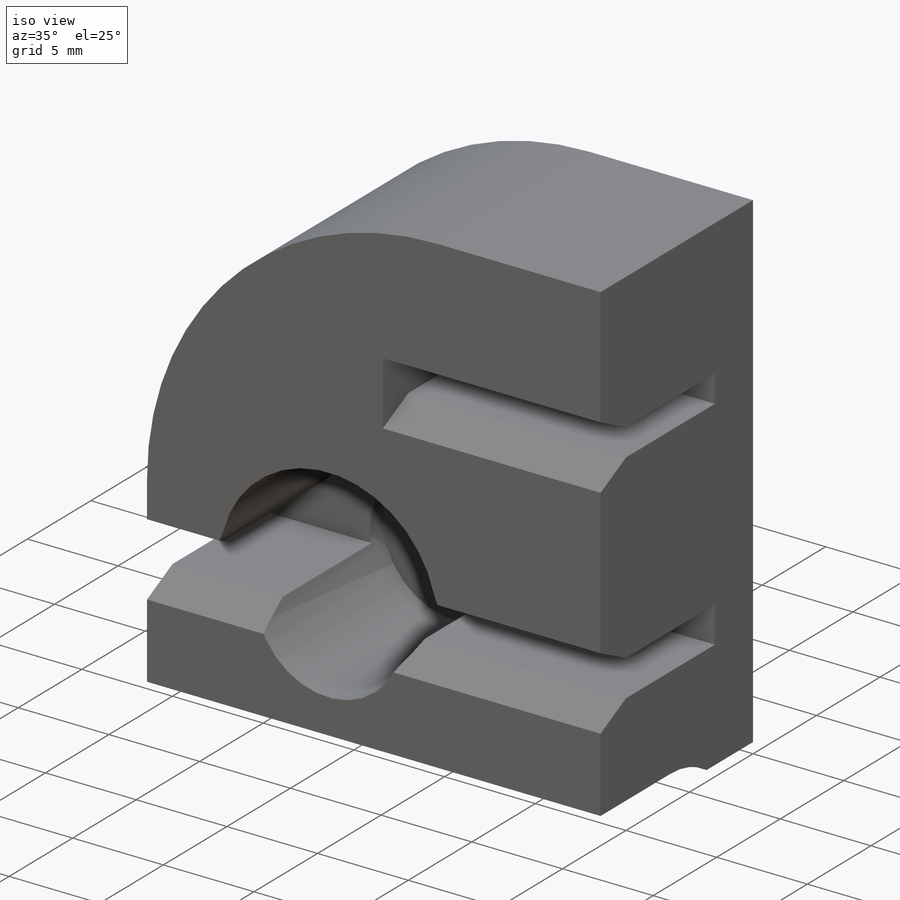
[diagram: iso view]
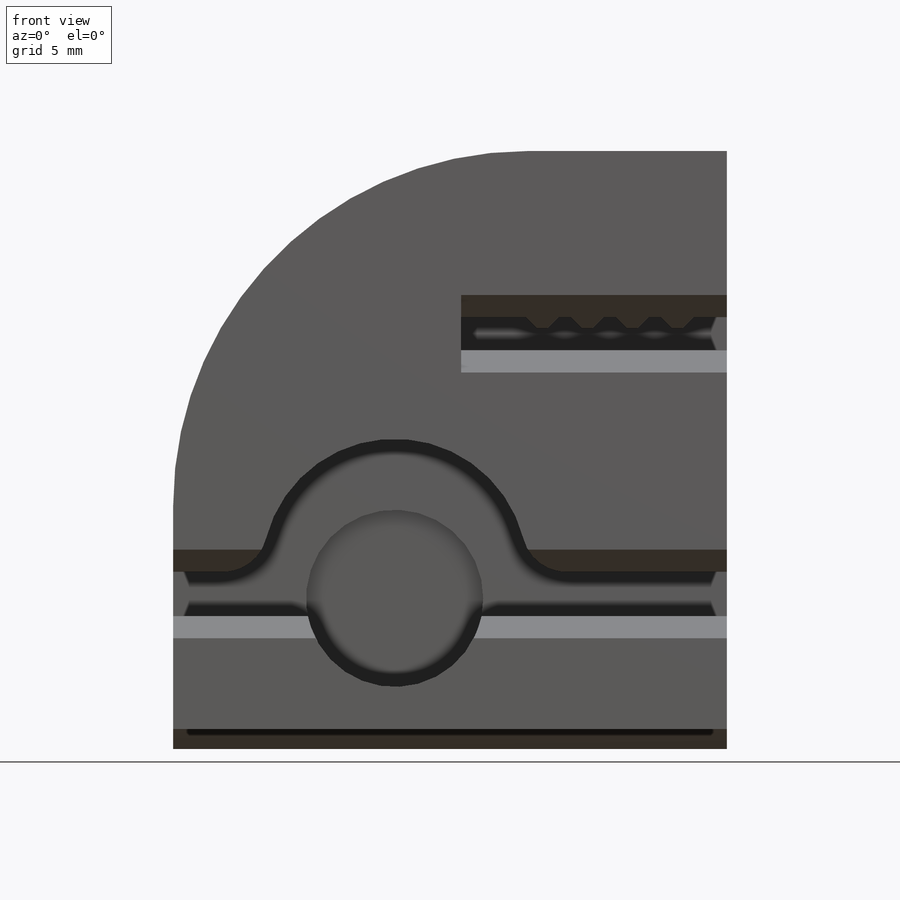
[diagram: front view]
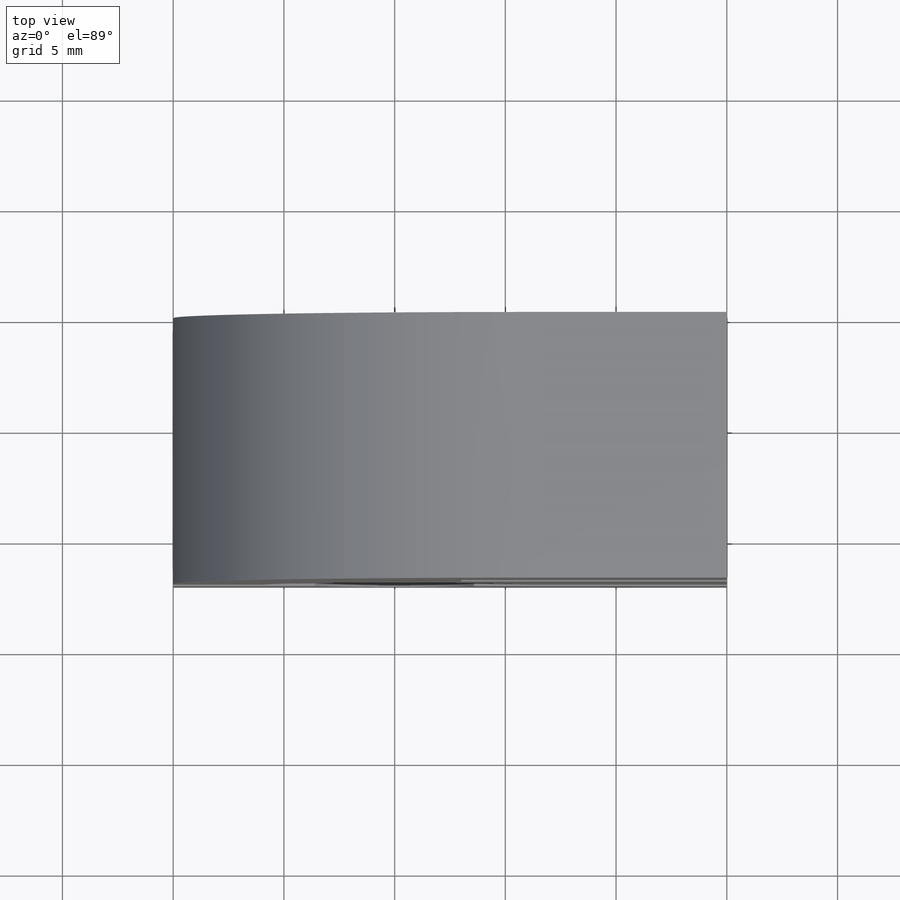
[diagram: top view]
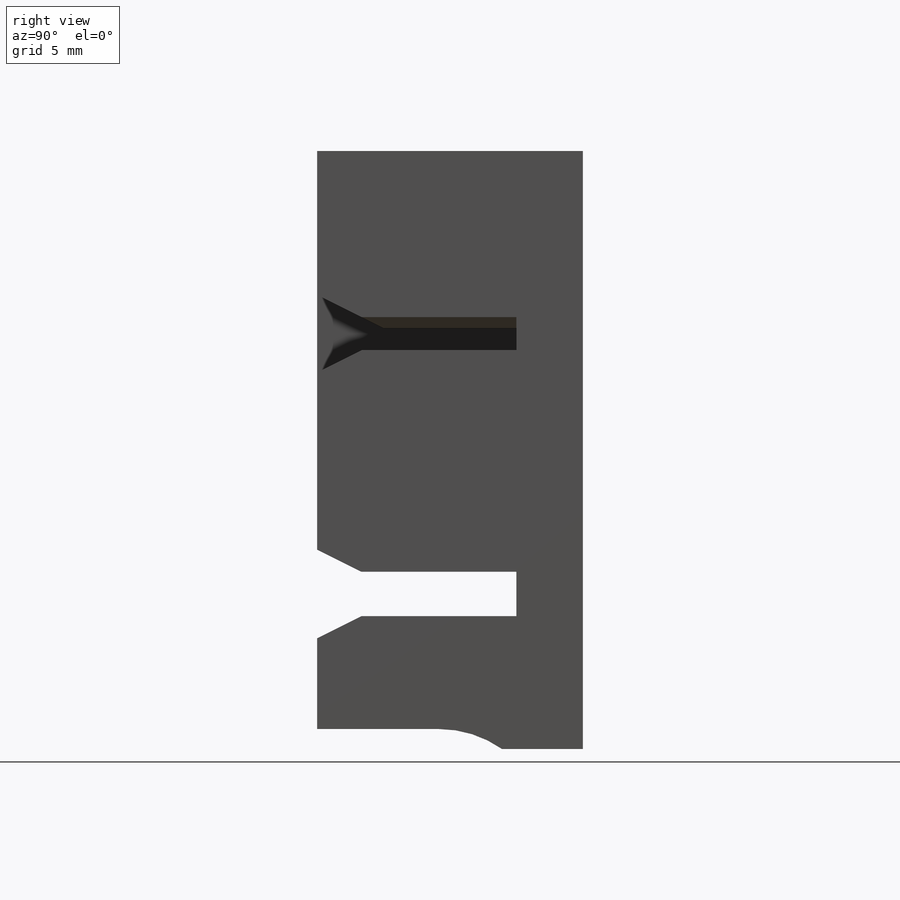
[diagram: right view]
SOLIDWORKS PART (.sldprt)
format: sldprt  version: not decoded by parser v0  size: 290,304 bytes
history: native  units: mm
features: sketch x6, cut_extrude x5, fillet x2, chamfer x2, material x1, extrude x1 (+12 scaffold rows collapsed)
feature tree (29):
  scaffold x12  (default folders/planes/origin — collapsed)
  material  "Material <not specified>"
  sketch  "Sketch1"  dims[D1=27.0mm D2=6.0mm D3=25.0mm]
  extrude  "Boss-Extrude1"  Depth=12mm
  sketch  "Sketch2"  dims[D10=6.0mm D1=1.5mm D2=0.5mm D3=2.032mm D4=0.5mm D5=12.0mm D6=1.5mm D7=2.0mm D8=15.0mm D9=12.0mm]
  cut_extrude  "Cut-Extrude1"  Depth=3mm
  sketch  "Sketch3"  dims[D2=9.9mm D1=10.05mm D3=3.5mm]
  cut_extrude  "Cut-Extrude2"  [1 undecoded]
  fillet  "Fillet1"  Radius=16mm
  chamfer  "Chamfer2"  Distance=1mm
  chamfer  "Chamfer3"  Distance=1mm
  sketch  "Sketch4"  dims[D2=3.2mm D1=3.675mm]
  cut_extrude  "Cut-Extrude3"  [1 undecoded]
  sketch  "Sketch5"  dims[D1=1.0mm D2=2.0mm]
  cut_extrude  "Cut-Extrude4"  [1 undecoded]
  fillet  "Fillet2"  Radius=2mm
  sketch  "Sketch6"  dims[D1=8.0mm]
  cut_extrude  "Cut-Extrude5"  Depth=1mm
decode coverage: 13 of 16 modeling features carry decoded parameters
note: 3 parameter values undecoded
summary: no parameter record found for 3 features
note: suppression state not decoded; provenance and decode notes live in map.json
